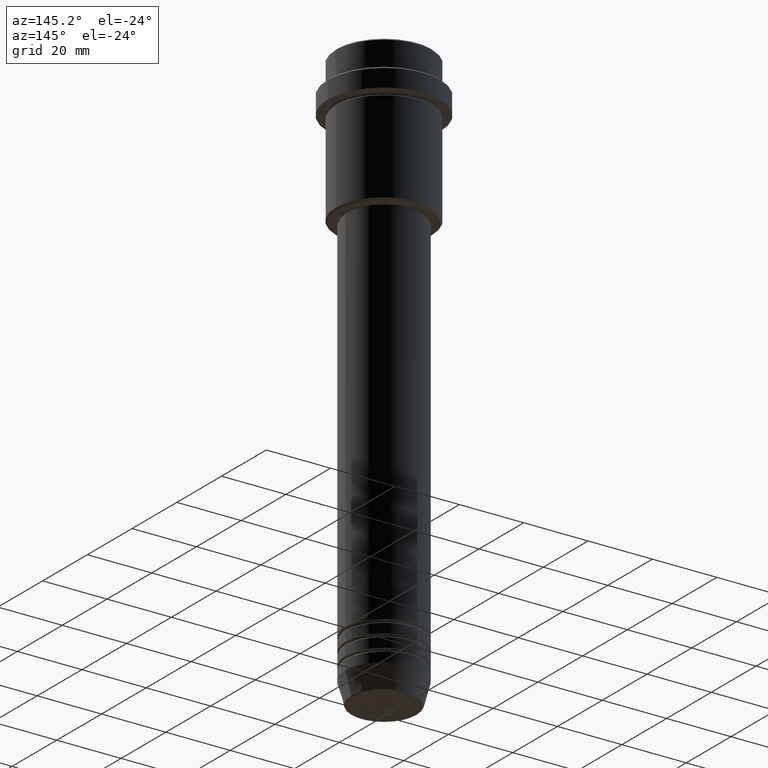
[diagram: clean part render]
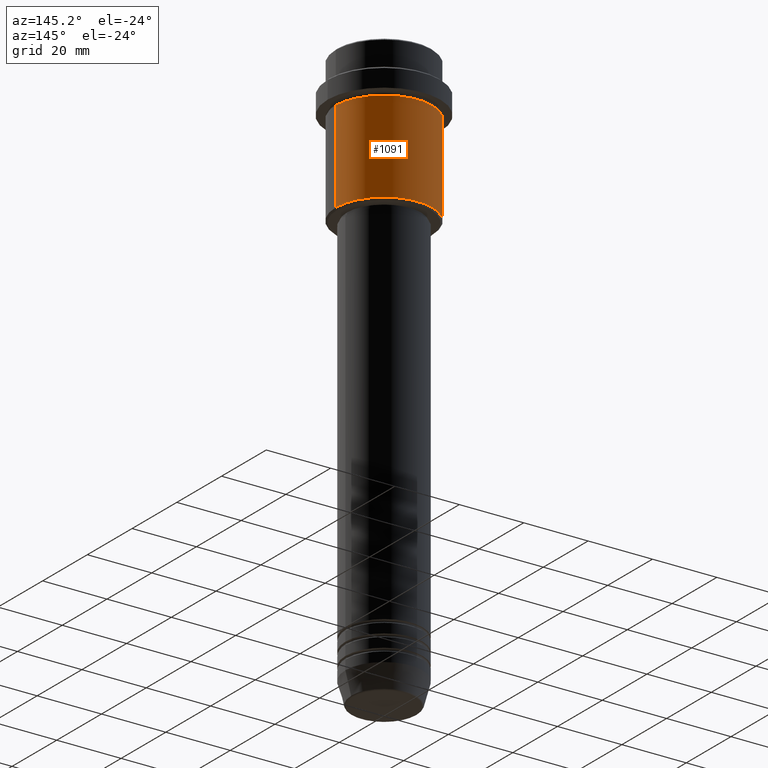
[diagram: same view with one face highlighted and labeled with its STEP entity id]
A machine part, auxiliary view. The second image highlights one B-rep face of the part: STEP entity #1091.
In plain terms, the highlighted cylindrical surface (partial cylindrical patch) has radius 15 mm, axis along (-0, -0, 1).
Its self-contained STEP definition (entity closure, byte-faithful):
#50 = LINE ( 'NONE', #605, #1043 ) ;
#57 = CIRCLE ( 'NONE', #776, 15.00000000000000000 ) ;
#103 = DIRECTION ( 'NONE',  ( 1.000000000000000000, 0.000000000000000000, 0.000000000000000000 ) ) ;
#120 = VECTOR ( 'NONE', #889, 1000.000000000000000 ) ;
#142 = DIRECTION ( 'NONE',  ( -0.000000000000000000, -0.000000000000000000, 1.000000000000000000 ) ) ;
#152 = CARTESIAN_POINT ( 'NONE',  ( -15.00000000000000000, 1.836970198721029589E-15, -44.50000000000000000 ) ) ;
#189 = VERTEX_POINT ( 'NONE', #603 ) ;
#191 = DIRECTION ( 'NONE',  ( -1.000000000000000000, 0.000000000000000000, 0.000000000000000000 ) ) ;
#362 = VERTEX_POINT ( 'NONE', #933 ) ;
#373 = CARTESIAN_POINT ( 'NONE',  ( 15.00000000000000000, 0.000000000000000000, 0.000000000000000000 ) ) ;
#446 = FACE_OUTER_BOUND ( 'NONE', #987, .T. ) ;
#453 = ORIENTED_EDGE ( 'NONE', *, *, #1246, .T. ) ;
#482 = VERTEX_POINT ( 'NONE', #764 ) ;
#496 = CIRCLE ( 'NONE', #1278, 15.00000000000000178 ) ;
#540 = CARTESIAN_POINT ( 'NONE',  ( 0.000000000000000000, 0.000000000000000000, -16.00000000000000000 ) ) ;
#603 = CARTESIAN_POINT ( 'NONE',  ( 15.00000000000000000, 0.000000000000000000, -44.50000000000000000 ) ) ;
#605 = CARTESIAN_POINT ( 'NONE',  ( -15.00000000000000000, 1.836970198721029589E-15, 0.000000000000000000 ) ) ;
#622 = DIRECTION ( 'NONE',  ( -0.000000000000000000, -0.000000000000000000, 1.000000000000000000 ) ) ;
#726 = EDGE_CURVE ( 'NONE', #189, #1237, #57, .T. ) ;
#764 = CARTESIAN_POINT ( 'NONE',  ( -15.00000000000000355, 1.836970198721029983E-15, -16.00000000000000000 ) ) ;
#776 = AXIS2_PLACEMENT_3D ( 'NONE', #1378, #622, #191 ) ;
#855 = DIRECTION ( 'NONE',  ( -0.000000000000000000, -0.000000000000000000, 1.000000000000000000 ) ) ;
#889 = DIRECTION ( 'NONE',  ( -0.000000000000000000, -0.000000000000000000, 1.000000000000000000 ) ) ;
#912 = ORIENTED_EDGE ( 'NONE', *, *, #927, .F. ) ;
#927 = EDGE_CURVE ( 'NONE', #362, #482, #496, .T. ) ;
#933 = CARTESIAN_POINT ( 'NONE',  ( 15.00000000000000178, 0.000000000000000000, -16.00000000000000000 ) ) ;
#987 = EDGE_LOOP ( 'NONE', ( #1316, #453, #912, #1282 ) ) ;
#993 = CARTESIAN_POINT ( 'NONE',  ( 0.000000000000000000, 0.000000000000000000, 0.000000000000000000 ) ) ;
#1007 = CYLINDRICAL_SURFACE ( 'NONE', #1102, 15.00000000000000000 ) ;
#1043 = VECTOR ( 'NONE', #1248, 1000.000000000000000 ) ;
#1091 = ADVANCED_FACE ( 'NONE', ( #446 ), #1007, .T. ) ;
#1102 = AXIS2_PLACEMENT_3D ( 'NONE', #993, #142, #1306 ) ;
#1109 = EDGE_CURVE ( 'NONE', #189, #362, #1190, .T. ) ;
#1190 = LINE ( 'NONE', #373, #120 ) ;
#1237 = VERTEX_POINT ( 'NONE', #152 ) ;
#1246 = EDGE_CURVE ( 'NONE', #1237, #482, #50, .T. ) ;
#1248 = DIRECTION ( 'NONE',  ( -0.000000000000000000, -0.000000000000000000, 1.000000000000000000 ) ) ;
#1278 = AXIS2_PLACEMENT_3D ( 'NONE', #540, #855, #103 ) ;
#1282 = ORIENTED_EDGE ( 'NONE', *, *, #1109, .F. ) ;
#1306 = DIRECTION ( 'NONE',  ( 1.000000000000000000, 0.000000000000000000, 0.000000000000000000 ) ) ;
#1316 = ORIENTED_EDGE ( 'NONE', *, *, #726, .T. ) ;
#1378 = CARTESIAN_POINT ( 'NONE',  ( 0.000000000000000000, 0.000000000000000000, -44.50000000000000000 ) ) ;